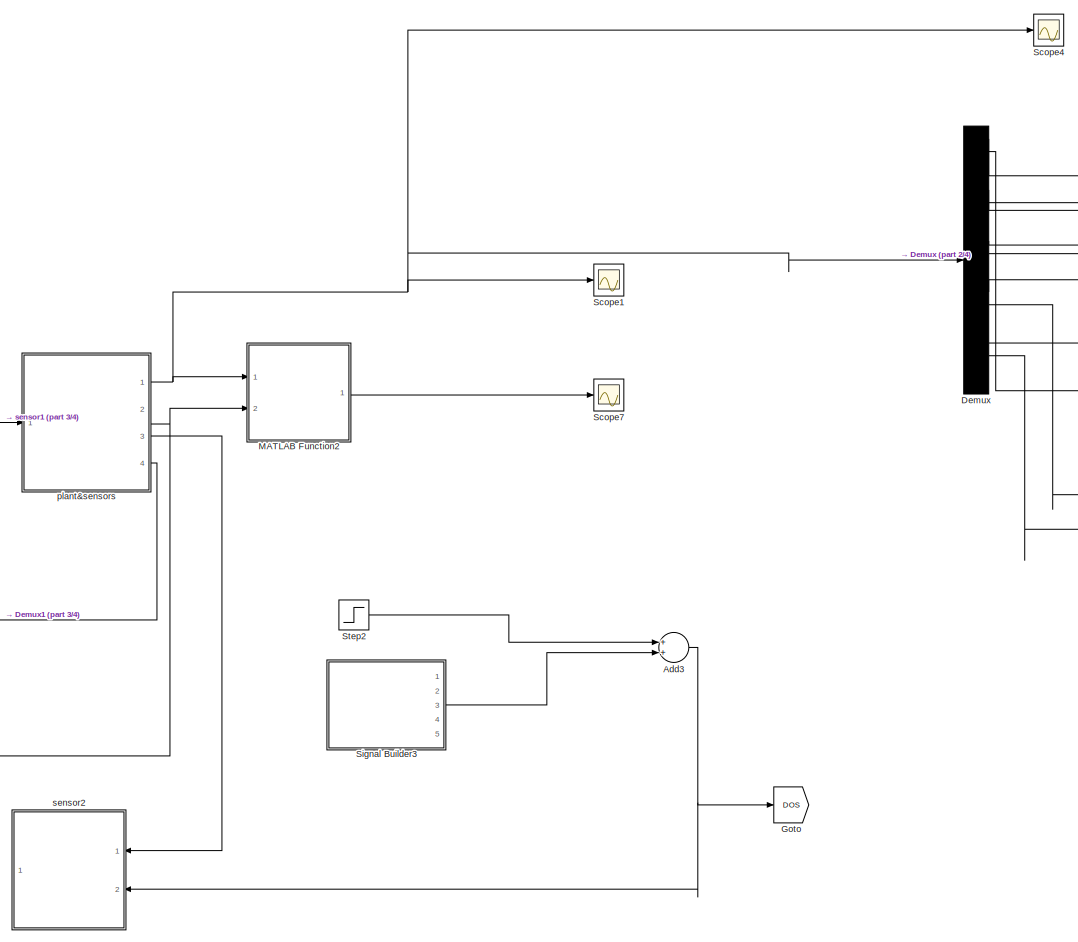
[diagram: root canvas - part 1/4, center side, full height]
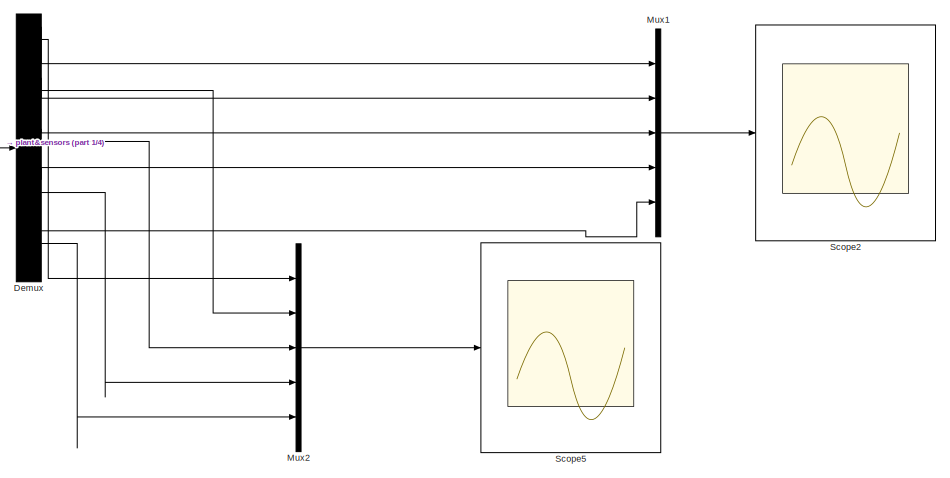
[diagram: root canvas - part 2/4, middle right region]
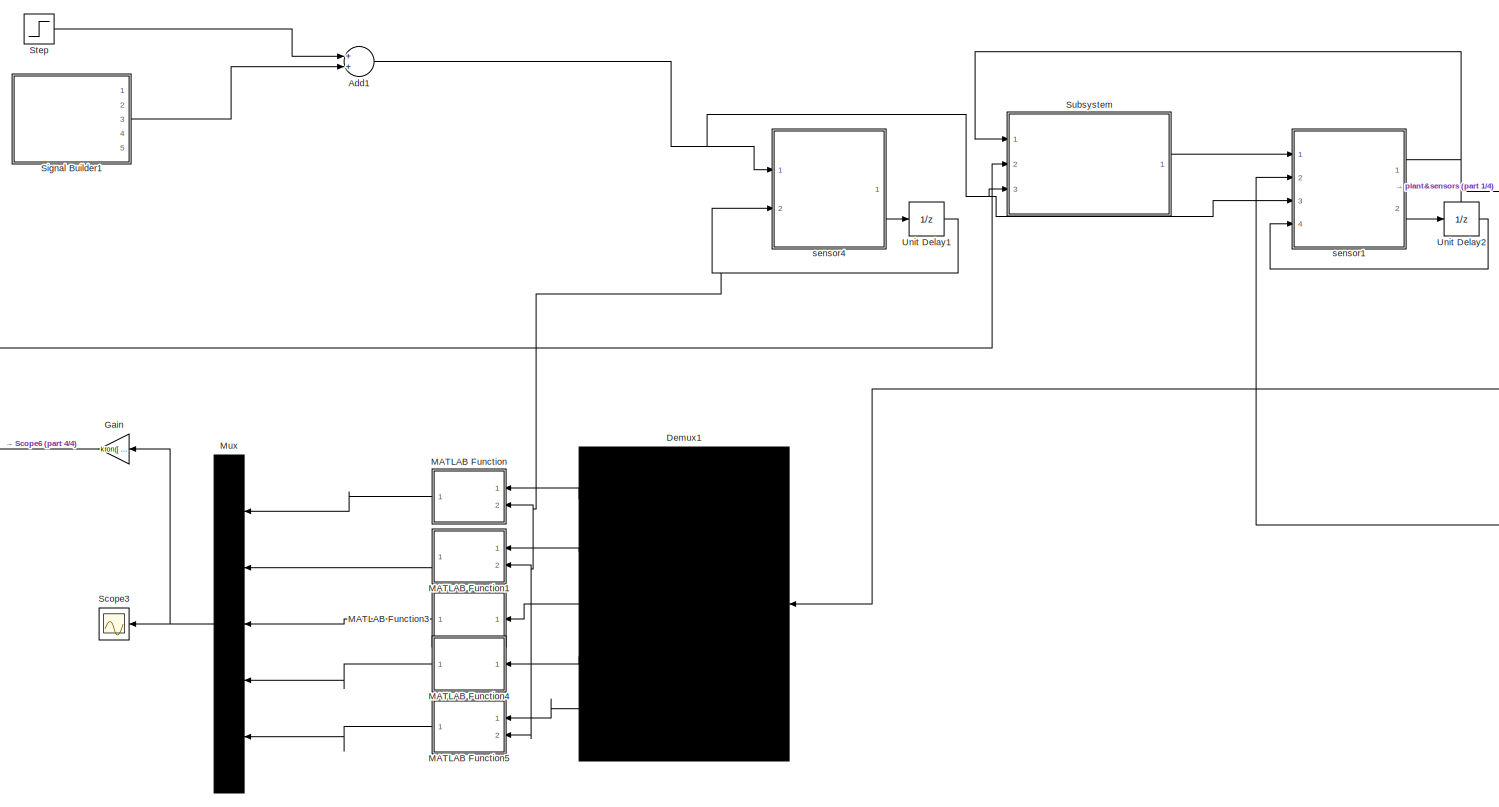
[diagram: root canvas - part 3/4, left side, full height]
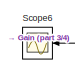
[diagram: root canvas - part 4/4, middle left region]
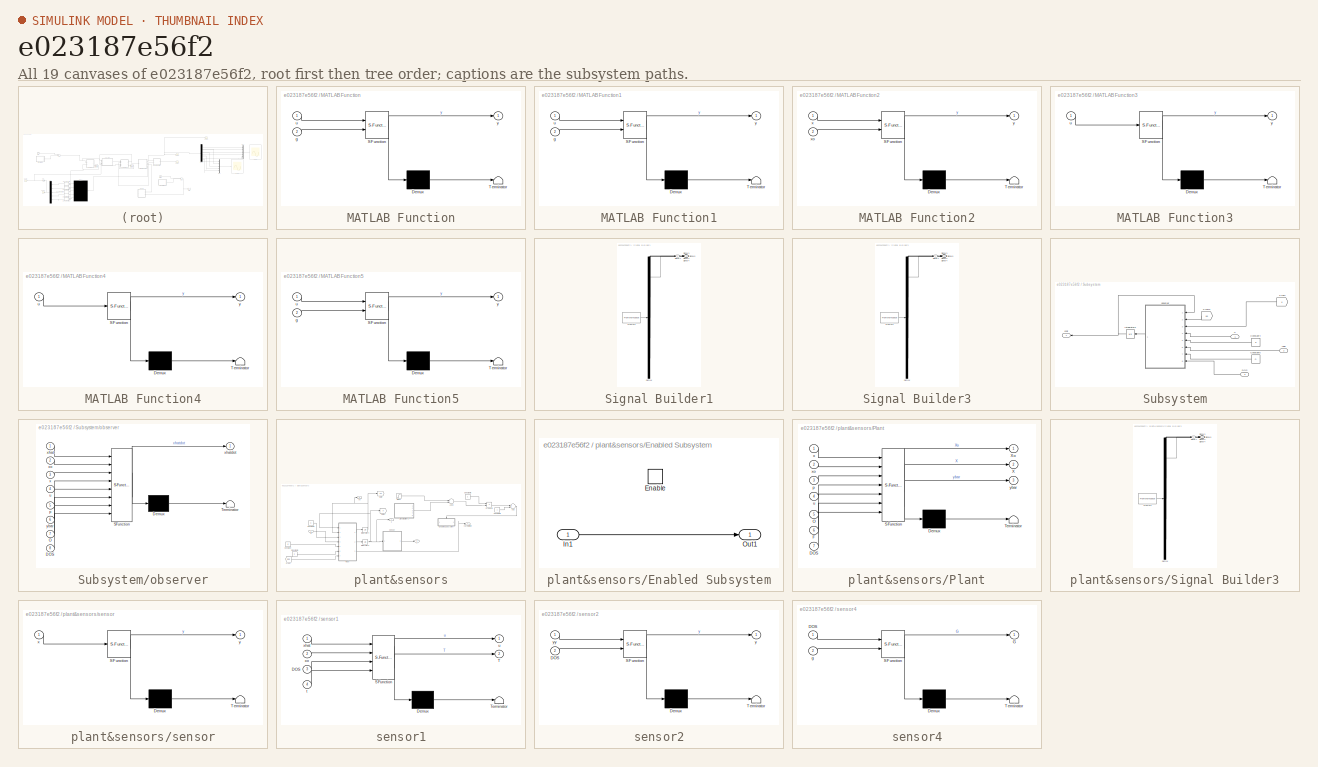
[diagram: thumbnail index - all 19 canvases of the model, root first then tree order]
MODEL slx_e023187e56f2
KIND model
CONFIG AbsTol = auto
CONFIG EnableMultiTasking = off
CONFIG FixedStep = auto
CONFIG MaxStep = auto
CONFIG MinStep = auto
CONFIG RelTol = 1e-3
CONFIG SampleTimeConstraint = Unconstrained
CONFIG Solver = VariableStepAuto
CONFIG SolverName = VariableStepAuto
CONFIG StartTime = 0.0
CONFIG StopTime = 10
BLOCK [Sum] Add1
  InputSameDT = off
  OutDataTypeStr = Inherit: Inherit via internal rule
  Ports = [2, 1]
  SaturateOnIntegerOverflow = off
BLOCK [Sum] Add3
  InputSameDT = off
  OutDataTypeStr = Inherit: Inherit via internal rule
  Ports = [2, 1]
  SaturateOnIntegerOverflow = off
BLOCK [Demux] Demux
  DisplayOption = bar
  Outputs = 20
  Ports = [1, 20]
BLOCK [Demux] Demux1
  DisplayOption = bar
  Outputs = 5
  Ports = [1, 5]
BLOCK [Gain] Gain
  Gain = kron([ 2 0 0 0 -1; -1 2 0 0 0; -1 0 1 0 0; 0 -1 0 1 0; 0 -1 -1 -1 3],[3.0849 0.6931;2.4258 34.9384;7.0235 3.5334;.54 1.8007])
  Multiplication = Matrix(K*u)
  OutDataTypeStr = Inherit: Inherit via internal rule
  ParamDataTypeStr = Inherit: Inherit via internal rule
  SaturateOnIntegerOverflow = off
BLOCK [Goto] Goto
  GotoTag = DOS
  TagVisibility = global
BLOCK [SubSystem] MATLAB Function
  ErrorFcn = Stateflow.Translate.translate
  PermitHierarchicalResolution = ExplicitOnly
  Ports = [2, 1]
  RequestExecContextInheritance = off
  SFBlockType = MATLAB Function
  TreatAsAtomicUnit = on
BLOCK [Demux] MATLAB Function/ Demux 
  Outputs = 1
  Ports = [1, 1]
BLOCK [S-Function] MATLAB Function/ SFunction 
  EnableBusSupport = on
  FunctionName = sf_sfun
  PortCounts = [2 2]
  Ports = [2, 2]
  SFcnIsStateOwnerBlock = off
  SFunctionDeploymentMode = off
  Tag = Stateflow S-Function newww 2
BLOCK [Terminator] MATLAB Function/ Terminator 
BLOCK [Inport] MATLAB Function/g
  IconDisplay = Port number
  Port = 2
BLOCK [Inport] MATLAB Function/u
  IconDisplay = Port number
BLOCK [Outport] MATLAB Function/y
  IconDisplay = Port number
BLOCK [SubSystem] MATLAB Function1
  ErrorFcn = Stateflow.Translate.translate
  PermitHierarchicalResolution = ExplicitOnly
  Ports = [2, 1]
  RequestExecContextInheritance = off
  SFBlockType = MATLAB Function
  TreatAsAtomicUnit = on
BLOCK [Demux] MATLAB Function1/ Demux 
  Outputs = 1
  Ports = [1, 1]
BLOCK [S-Function] MATLAB Function1/ SFunction 
  EnableBusSupport = on
  FunctionName = sf_sfun
  PortCounts = [2 2]
  Ports = [2, 2]
  SFcnIsStateOwnerBlock = off
  SFunctionDeploymentMode = off
  Tag = Stateflow S-Function newww 7
BLOCK [Terminator] MATLAB Function1/ Terminator 
BLOCK [Inport] MATLAB Function1/g
  IconDisplay = Port number
  Port = 2
BLOCK [Inport] MATLAB Function1/u
  IconDisplay = Port number
BLOCK [Outport] MATLAB Function1/y
  IconDisplay = Port number
BLOCK [SubSystem] MATLAB Function2
  ErrorFcn = Stateflow.Translate.translate
  PermitHierarchicalResolution = ExplicitOnly
  Ports = [2, 1]
  RequestExecContextInheritance = off
  SFBlockType = MATLAB Function
  TreatAsAtomicUnit = on
BLOCK [Demux] MATLAB Function2/ Demux 
  Outputs = 1
  Ports = [1, 1]
BLOCK [S-Function] MATLAB Function2/ SFunction 
  EnableBusSupport = on
  FunctionName = sf_sfun
  PortCounts = [2 2]
  Ports = [2, 2]
  SFcnIsStateOwnerBlock = off
  SFunctionDeploymentMode = off
  Tag = Stateflow S-Function newww 8
BLOCK [Terminator] MATLAB Function2/ Terminator 
BLOCK [Inport] MATLAB Function2/x
  IconDisplay = Port number
BLOCK [Inport] MATLAB Function2/xo
  IconDisplay = Port number
  Port = 2
BLOCK [Outport] MATLAB Function2/y
  IconDisplay = Port number
BLOCK [SubSystem] MATLAB Function3
  ErrorFcn = Stateflow.Translate.translate
  PermitHierarchicalResolution = ExplicitOnly
  Ports = [1, 1]
  RequestExecContextInheritance = off
  SFBlockType = MATLAB Function
  TreatAsAtomicUnit = on
BLOCK [Demux] MATLAB Function3/ Demux 
  Outputs = 1
  Ports = [1, 1]
BLOCK [S-Function] MATLAB Function3/ SFunction 
  EnableBusSupport = on
  FunctionName = sf_sfun
  PortCounts = [1 2]
  Ports = [1, 2]
  SFcnIsStateOwnerBlock = off
  SFunctionDeploymentMode = off
  Tag = Stateflow S-Function newww 10
BLOCK [Terminator] MATLAB Function3/ Terminator 
BLOCK [Inport] MATLAB Function3/u
  IconDisplay = Port number
BLOCK [Outport] MATLAB Function3/y
  IconDisplay = Port number
BLOCK [SubSystem] MATLAB Function4
  ErrorFcn = Stateflow.Translate.translate
  PermitHierarchicalResolution = ExplicitOnly
  Ports = [1, 1]
  RequestExecContextInheritance = off
  SFBlockType = MATLAB Function
  TreatAsAtomicUnit = on
BLOCK [Demux] MATLAB Function4/ Demux 
  Outputs = 1
  Ports = [1, 1]
BLOCK [S-Function] MATLAB Function4/ SFunction 
  EnableBusSupport = on
  FunctionName = sf_sfun
  PortCounts = [1 2]
  Ports = [1, 2]
  SFcnIsStateOwnerBlock = off
  SFunctionDeploymentMode = off
  Tag = Stateflow S-Function newww 11
BLOCK [Terminator] MATLAB Function4/ Terminator 
BLOCK [Inport] MATLAB Function4/u
  IconDisplay = Port number
BLOCK [Outport] MATLAB Function4/y
  IconDisplay = Port number
BLOCK [SubSystem] MATLAB Function5
  ErrorFcn = Stateflow.Translate.translate
  PermitHierarchicalResolution = ExplicitOnly
  Ports = [2, 1]
  RequestExecContextInheritance = off
  SFBlockType = MATLAB Function
  TreatAsAtomicUnit = on
BLOCK [Demux] MATLAB Function5/ Demux 
  Outputs = 1
  Ports = [1, 1]
BLOCK [S-Function] MATLAB Function5/ SFunction 
  EnableBusSupport = on
  FunctionName = sf_sfun
  PortCounts = [2 2]
  Ports = [2, 2]
  SFcnIsStateOwnerBlock = off
  SFunctionDeploymentMode = off
  Tag = Stateflow S-Function newww 12
BLOCK [Terminator] MATLAB Function5/ Terminator 
BLOCK [Inport] MATLAB Function5/g
  IconDisplay = Port number
  Port = 2
BLOCK [Inport] MATLAB Function5/u
  IconDisplay = Port number
BLOCK [Outport] MATLAB Function5/y
  IconDisplay = Port number
BLOCK [Mux] Mux
  DisplayOption = bar
  Inputs = 5
  Ports = [5, 1]
BLOCK [Mux] Mux1
  DisplayOption = bar
  Inputs = 5
  Ports = [5, 1]
BLOCK [Mux] Mux2
  DisplayOption = bar
  Inputs = 5
  Ports = [5, 1]
BLOCK [Scope] Scope1
  Floating = off
  NumInputPorts = 1
  Ports = [1]
  ScopeSpecificationString = Simulink.scopes.TimeScopeBlockCfg('CurrentConfiguration', extmgr.ConfigurationSet(extmgr.Configuration('Core','General UI',true),extmgr.Configuration('Core','Source UI',true),extmgr.Configuration('Sources','WiredSimulink',true,'DataLoggingVariableName','ScopeData4','DataLogging',true,'DataLoggingSaveFormat','StructureWithTime'),extmgr.Configuration('Visuals','Time Domain',true,'SerializedDisplays'...<+1879ch>
BLOCK [Scope] Scope2
  Floating = off
  NumInputPorts = 1
  Ports = [1]
  ScopeSpecificationString = Simulink.scopes.TimeScopeBlockCfg('CurrentConfiguration', extmgr.ConfigurationSet(extmgr.Configuration('Core','General UI',true),extmgr.Configuration('Core','Source UI',true),extmgr.Configuration('Sources','WiredSimulink',true,'DataLoggingVariableName','x1res','DataLogging',true,'DataLoggingSaveFormat','StructureWithTime'),extmgr.Configuration('Visuals','Time Domain',true,'SerializedDisplays',{str...<+1506ch>
BLOCK [Scope] Scope3
  Floating = off
  NumInputPorts = 1
  Ports = [1]
  ScopeSpecificationString = Simulink.scopes.TimeScopeBlockCfg('CurrentConfiguration', extmgr.ConfigurationSet(extmgr.Configuration('Core','General UI',true),extmgr.Configuration('Core','Source UI',true),extmgr.Configuration('Sources','WiredSimulink',true,'DataLoggingVariableName','hgoi','DataLogging',true,'DataLoggingSaveFormat','StructureWithTime'),extmgr.Configuration('Visuals','Time Domain',true,'SerializedDisplays',{stru...<+1688ch>
BLOCK [Scope] Scope4
  Floating = off
  NumInputPorts = 1
  Ports = [1]
  ScopeSpecificationString = Simulink.scopes.TimeScopeBlockCfg('CurrentConfiguration', extmgr.ConfigurationSet(extmgr.Configuration('Core','General UI',true),extmgr.Configuration('Core','Source UI',true),extmgr.Configuration('Sources','WiredSimulink',true,'DataLoggingVariableName','aaa','DataLogging',true,'DataLoggingSaveFormat','StructureWithTime'),extmgr.Configuration('Visuals','Time Domain',true,'SerializedDisplays',{struc...<+1870ch>
BLOCK [Scope] Scope5
  Floating = off
  NumInputPorts = 1
  Ports = [1]
  ScopeSpecificationString = Simulink.scopes.TimeScopeBlockCfg('CurrentConfiguration', extmgr.ConfigurationSet(extmgr.Configuration('Core','General UI',true),extmgr.Configuration('Core','Source UI',true),extmgr.Configuration('Sources','WiredSimulink',true,'DataLoggingVariableName','x2res','DataLogging',true,'DataLoggingSaveFormat','StructureWithTime'),extmgr.Configuration('Visuals','Time Domain',true,'SerializedDisplays',{str...<+1509ch>
BLOCK [Scope] Scope6
  Floating = off
  NumInputPorts = 1
  Ports = [1]
  ScopeSpecificationString = Simulink.scopes.TimeScopeBlockCfg('CurrentConfiguration', extmgr.ConfigurationSet(extmgr.Configuration('Core','General UI',true),extmgr.Configuration('Core','Source UI',true),extmgr.Configuration('Sources','WiredSimulink',true,'DataLoggingVariableName','hgoi1','DataLogging',true,'DataLoggingSaveFormat','StructureWithTime'),extmgr.Configuration('Visuals','Time Domain',true,'SerializedDisplays',{str...<+1685ch>
BLOCK [Scope] Scope7
  Floating = off
  NumInputPorts = 1
  Ports = [1]
  ScopeSpecificationString = Simulink.scopes.TimeScopeBlockCfg('CurrentConfiguration', extmgr.ConfigurationSet(extmgr.Configuration('Core','General UI',true),extmgr.Configuration('Core','Source UI',true),extmgr.Configuration('Sources','WiredSimulink',true,'DataLoggingVariableName','eres','DataLogging',true,'DataLoggingSaveFormat','StructureWithTime'),extmgr.Configuration('Visuals','Time Domain',true,'SerializedDisplays',{stru...<+1478ch>
BLOCK [SubSystem] Signal Builder1
  ClipboardFcn = sigbuilder_block('clipboard');
  CloseFcn = sigbuilder_block('close');
  ContinueFcn = sigbuilder_block('continue');
  CopyFcn = sigbuilder_block('copy');
  DeleteFcn = sigbuilder_block('delete');
  LoadFcn = sigbuilder_block('load');
  MaskHideContents = on
  ModelCloseFcn = sigbuilder_block('modelClose');
  NameChangeFcn = sigbuilder_block('namechange');
  OpenFcn = sigbuilder_block('open',[5.4 30 1141.2 522.6 ]);
  PauseFcn = sigbuilder_block('pause');
  Ports = [0, 5]
  PreSaveFcn = sigbuilder_block('preSave');
  RequestExecContextInheritance = off
  StartFcn = sigbuilder_block('start');
  StopFcn = sigbuilder_block('stop');
  Tag = STV Subsys
BLOCK [Demux] Signal Builder1/Demux
  Outputs = 5
  Ports = [1, 5]
  Tag = STV Demux
BLOCK [FromWorkspace] Signal Builder1/FromWs
  SampleTime = 0
  Tag = STV FromWs
  VariableName = tuvar
  ZeroCross = on
BLOCK [Outport] Signal Builder1/Signal 1
  IconDisplay = Port number
  Tag = STV Outport
BLOCK [Outport] Signal Builder1/Signal 2
  IconDisplay = Port number
  Port = 2
  Tag = STV Outport
BLOCK [Outport] Signal Builder1/Signal 3
  IconDisplay = Port number
  Port = 3
  Tag = STV Outport
BLOCK [Outport] Signal Builder1/Signal 4
  IconDisplay = Port number
  Port = 4
  Tag = STV Outport
BLOCK [Outport] Signal Builder1/Signal 5
  IconDisplay = Port number
  Port = 5
  Tag = STV Outport
BLOCK [SubSystem] Signal Builder3
  ClipboardFcn = sigbuilder_block('clipboard');
  CloseFcn = sigbuilder_block('close');
  ContinueFcn = sigbuilder_block('continue');
  CopyFcn = sigbuilder_block('copy');
  DeleteFcn = sigbuilder_block('delete');
  LoadFcn = sigbuilder_block('load');
  MaskHideContents = on
  ModelCloseFcn = sigbuilder_block('modelClose');
  NameChangeFcn = sigbuilder_block('namechange');
  OpenFcn = sigbuilder_block('open',[5.4 30 1141.2 522.6 ]);
  PauseFcn = sigbuilder_block('pause');
  Ports = [0, 5]
  PreSaveFcn = sigbuilder_block('preSave');
  RequestExecContextInheritance = off
  StartFcn = sigbuilder_block('start');
  StopFcn = sigbuilder_block('stop');
  Tag = STV Subsys
BLOCK [Demux] Signal Builder3/Demux
  Outputs = 5
  Ports = [1, 5]
  Tag = STV Demux
BLOCK [FromWorkspace] Signal Builder3/FromWs
  SampleTime = 0
  Tag = STV FromWs
  VariableName = tuvar
  ZeroCross = on
BLOCK [Outport] Signal Builder3/Signal 1
  IconDisplay = Port number
  Tag = STV Outport
BLOCK [Outport] Signal Builder3/Signal 2
  IconDisplay = Port number
  Port = 2
  Tag = STV Outport
BLOCK [Outport] Signal Builder3/Signal 3
  IconDisplay = Port number
  Port = 3
  Tag = STV Outport
BLOCK [Outport] Signal Builder3/Signal 4
  IconDisplay = Port number
  Port = 4
  Tag = STV Outport
BLOCK [Outport] Signal Builder3/Signal 5
  IconDisplay = Port number
  Port = 5
  Tag = STV Outport
BLOCK [Step] Step
  After = -1
  SampleTime = 10
BLOCK [Step] Step2
  After = -1
  SampleTime = 10
BLOCK [SubSystem] Subsystem
  Ports = [3, 1]
  RequestExecContextInheritance = off
BLOCK [Constant] Subsystem/Constant4
  Value = p
BLOCK [Constant] Subsystem/Constant5
  Value = O
BLOCK [Inport] Subsystem/DOS
  IconDisplay = Port number
  Port = 3
BLOCK [From] Subsystem/From
  GotoTag = x
  TagVisibility = global
BLOCK [From] Subsystem/From1
  GotoTag = xo
  TagVisibility = global
BLOCK [Integrator] Subsystem/Integrator2
  InitialCondition = [-10;-9;-8;-7;-6;5;-4;-3;-2;-1;1;2;3;4;5;6;7;8;9;10]
  Ports = [1, 1]
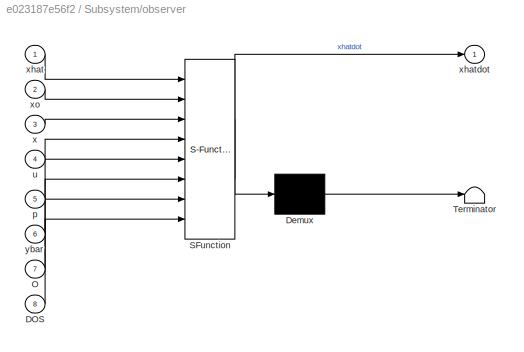
BLOCK [SubSystem] Subsystem/observer
  ErrorFcn = Stateflow.Translate.translate
  PermitHierarchicalResolution = ExplicitOnly
  Ports = [8, 1]
  RequestExecContextInheritance = off
  SFBlockType = MATLAB Function
  TreatAsAtomicUnit = on
BLOCK [Demux] Subsystem/observer/ Demux 
  Outputs = 1
  Ports = [1, 1]
BLOCK [S-Function] Subsystem/observer/ SFunction 
  EnableBusSupport = on
  FunctionName = sf_sfun
  PortCounts = [8 2]
  Ports = [8, 2]
  SFcnIsStateOwnerBlock = off
  SFunctionDeploymentMode = off
  Tag = Stateflow S-Function newww 1
BLOCK [Terminator] Subsystem/observer/ Terminator 
BLOCK [Inport] Subsystem/observer/DOS
  IconDisplay = Port number
  Port = 8
BLOCK [Inport] Subsystem/observer/O
  IconDisplay = Port number
  Port = 7
BLOCK [Inport] Subsystem/observer/p
  IconDisplay = Port number
  Port = 5
BLOCK [Inport] Subsystem/observer/u
  IconDisplay = Port number
  Port = 4
BLOCK [Inport] Subsystem/observer/x
  IconDisplay = Port number
  Port = 3
BLOCK [Inport] Subsystem/observer/xhat
  IconDisplay = Port number
BLOCK [Outport] Subsystem/observer/xhatdot
  IconDisplay = Port number
BLOCK [Inport] Subsystem/observer/xo
  IconDisplay = Port number
  Port = 2
BLOCK [Inport] Subsystem/observer/ybar
  IconDisplay = Port number
  Port = 6
BLOCK [Inport] Subsystem/u
  IconDisplay = Port number
BLOCK [Outport] Subsystem/xhat
  IconDisplay = Port number
BLOCK [Inport] Subsystem/ybar
  IconDisplay = Port number
  Port = 2
BLOCK [UnitDelay] Unit Delay1
  InitialCondition = [eye(2) zeros(2,6)]
  InputProcessing = Elements as channels (sample based)
  SampleTime = 0.01
BLOCK [UnitDelay] Unit Delay2
  InitialCondition = [1 0 0 0]
  InputProcessing = Elements as channels (sample based)
  SampleTime = 0.01
BLOCK [SubSystem] plant&sensors
  Ports = [1, 4]
  RequestExecContextInheritance = off
BLOCK [Sum] plant&sensors/Add
  InputSameDT = off
  OutDataTypeStr = Inherit: Inherit via internal rule
  Ports = [2, 1]
  SaturateOnIntegerOverflow = off
BLOCK [Sum] plant&sensors/Add3
  InputSameDT = off
  OutDataTypeStr = Inherit: Inherit via internal rule
  Ports = [2, 1]
  SaturateOnIntegerOverflow = off
BLOCK [Constant] plant&sensors/Constant
  Value = O
BLOCK [Constant] plant&sensors/Constant4
  Value = F
BLOCK [Constant] plant&sensors/Constant5
  Value = -1
BLOCK [Constant] plant&sensors/Constant6
BLOCK [Constant] plant&sensors/Constant7
  Value = p
BLOCK [SubSystem] plant&sensors/Enabled Subsystem
  Ports = [1, 1, 1]
  RequestExecContextInheritance = off
  TreatAsAtomicUnit = on
BLOCK [EnablePort] plant&sensors/Enabled Subsystem/Enable
  Ports = []
BLOCK [Inport] plant&sensors/Enabled Subsystem/In1
  IconDisplay = Port number
BLOCK [Outport] plant&sensors/Enabled Subsystem/Out1
  IconDisplay = Port number
BLOCK [From] plant&sensors/From
  GotoTag = DOS
  TagVisibility = global
BLOCK [Goto] plant&sensors/Goto
  GotoTag = xo
  TagVisibility = global
BLOCK [Goto] plant&sensors/Goto1
  GotoTag = x
  TagVisibility = global
BLOCK [Integrator] plant&sensors/Integrator3
  InitialCondition = [-10;-9;-8;-7;-6;5;-4;-3;-2;-1;1;2;3;4;5;6;7;8;9;10]
  Ports = [1, 1]
BLOCK [Integrator] plant&sensors/Integrator4
  InitialCondition = [-5;1;3;-15]
  Ports = [1, 1]
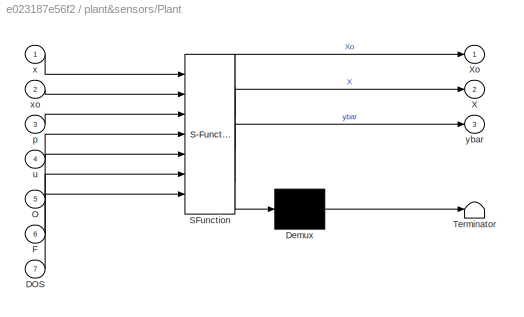
BLOCK [SubSystem] plant&sensors/Plant
  ErrorFcn = Stateflow.Translate.translate
  PermitHierarchicalResolution = ExplicitOnly
  Ports = [7, 3]
  RequestExecContextInheritance = off
  SFBlockType = MATLAB Function
  TreatAsAtomicUnit = on
BLOCK [Demux] plant&sensors/Plant/ Demux 
  Outputs = 1
  Ports = [1, 1]
BLOCK [S-Function] plant&sensors/Plant/ SFunction 
  EnableBusSupport = on
  FunctionName = sf_sfun
  PortCounts = [7 4]
  Ports = [7, 4]
  SFcnIsStateOwnerBlock = off
  SFunctionDeploymentMode = off
  Tag = Stateflow S-Function newww 6
BLOCK [Terminator] plant&sensors/Plant/ Terminator 
BLOCK [Inport] plant&sensors/Plant/DOS
  IconDisplay = Port number
  Port = 7
BLOCK [Inport] plant&sensors/Plant/F
  IconDisplay = Port number
  Port = 6
BLOCK [Inport] plant&sensors/Plant/O
  IconDisplay = Port number
  Port = 5
BLOCK [Outport] plant&sensors/Plant/X
  IconDisplay = Port number
  Port = 2
BLOCK [Outport] plant&sensors/Plant/Xo
  IconDisplay = Port number
BLOCK [Inport] plant&sensors/Plant/p
  IconDisplay = Port number
  Port = 3
BLOCK [Inport] plant&sensors/Plant/u
  IconDisplay = Port number
  Port = 4
BLOCK [Inport] plant&sensors/Plant/x
  IconDisplay = Port number
BLOCK [Inport] plant&sensors/Plant/xo
  IconDisplay = Port number
  Port = 2
BLOCK [Outport] plant&sensors/Plant/ybar
  IconDisplay = Port number
  Port = 3
BLOCK [Product] plant&sensors/Product1
  InputSameDT = off
  OutDataTypeStr = Inherit: Inherit via internal rule
  Ports = [2, 1]
  RndMeth = Floor
  SaturateOnIntegerOverflow = off
BLOCK [SubSystem] plant&sensors/Signal Builder3
  ClipboardFcn = sigbuilder_block('clipboard');
  CloseFcn = sigbuilder_block('close');
  ContinueFcn = sigbuilder_block('continue');
  CopyFcn = sigbuilder_block('copy');
  DeleteFcn = sigbuilder_block('delete');
  LoadFcn = sigbuilder_block('load');
  MaskHideContents = on
  ModelCloseFcn = sigbuilder_block('modelClose');
  NameChangeFcn = sigbuilder_block('namechange');
  OpenFcn = sigbuilder_block('open',[5.4 30 1141.2 522.6 ]);
  PauseFcn = sigbuilder_block('pause');
  Ports = [0, 5]
  PreSaveFcn = sigbuilder_block('preSave');
  RequestExecContextInheritance = off
  StartFcn = sigbuilder_block('start');
  StopFcn = sigbuilder_block('stop');
  Tag = STV Subsys
BLOCK [Demux] plant&sensors/Signal Builder3/Demux
  Outputs = 5
  Ports = [1, 5]
  Tag = STV Demux
BLOCK [FromWorkspace] plant&sensors/Signal Builder3/FromWs
  SampleTime = 0
  Tag = STV FromWs
  VariableName = tuvar
  ZeroCross = on
BLOCK [Outport] plant&sensors/Signal Builder3/Signal 1
  IconDisplay = Port number
  Tag = STV Outport
BLOCK [Outport] plant&sensors/Signal Builder3/Signal 2
  IconDisplay = Port number
  Port = 2
  Tag = STV Outport
BLOCK [Outport] plant&sensors/Signal Builder3/Signal 3
  IconDisplay = Port number
  Port = 3
  Tag = STV Outport
BLOCK [Outport] plant&sensors/Signal Builder3/Signal 4
  IconDisplay = Port number
  Port = 4
  Tag = STV Outport
BLOCK [Outport] plant&sensors/Signal Builder3/Signal 5
  IconDisplay = Port number
  Port = 5
  Tag = STV Outport
BLOCK [Step] plant&sensors/Step2
  After = -1
  SampleTime = 10
BLOCK [SubSystem] plant&sensors/sensor
  ErrorFcn = Stateflow.Translate.translate
  PermitHierarchicalResolution = ExplicitOnly
  Ports = [1, 1]
  RequestExecContextInheritance = off
  SFBlockType = MATLAB Function
  TreatAsAtomicUnit = on
BLOCK [Demux] plant&sensors/sensor/ Demux 
  Outputs = 1
  Ports = [1, 1]
BLOCK [S-Function] plant&sensors/sensor/ SFunction 
  EnableBusSupport = on
  FunctionName = sf_sfun
  PortCounts = [1 2]
  Ports = [1, 2]
  SFcnIsStateOwnerBlock = off
  SFunctionDeploymentMode = off
  Tag = Stateflow S-Function newww 4
BLOCK [Terminator] plant&sensors/sensor/ Terminator 
BLOCK [Inport] plant&sensors/sensor/x
  IconDisplay = Port number
BLOCK [Outport] plant&sensors/sensor/y
  IconDisplay = Port number
BLOCK [Inport] plant&sensors/u
  IconDisplay = Port number
BLOCK [Outport] plant&sensors/x
  IconDisplay = Port number
BLOCK [Outport] plant&sensors/xo
  IconDisplay = Port number
  Port = 2
BLOCK [Outport] plant&sensors/y
  IconDisplay = Port number
  Port = 3
BLOCK [Outport] plant&sensors/ypredictive
  IconDisplay = Port number
  Port = 4
BLOCK [SubSystem] sensor1
  ErrorFcn = Stateflow.Translate.translate
  PermitHierarchicalResolution = ExplicitOnly
  Ports = [4, 2]
  RequestExecContextInheritance = off
  SFBlockType = MATLAB Function
  TreatAsAtomicUnit = on
BLOCK [Demux] sensor1/ Demux 
  Outputs = 1
  Ports = [1, 1]
BLOCK [S-Function] sensor1/ SFunction 
  EnableBusSupport = on
  FunctionName = sf_sfun
  PortCounts = [4 3]
  Ports = [4, 3]
  SFcnIsStateOwnerBlock = off
  SFunctionDeploymentMode = off
  Tag = Stateflow S-Function newww 3
BLOCK [Terminator] sensor1/ Terminator 
BLOCK [Inport] sensor1/DOS
  IconDisplay = Port number
  Port = 3
BLOCK [Outport] sensor1/T
  IconDisplay = Port number
  Port = 2
BLOCK [Inport] sensor1/t
  IconDisplay = Port number
  Port = 4
BLOCK [Outport] sensor1/u
  IconDisplay = Port number
BLOCK [Inport] sensor1/xhat
  IconDisplay = Port number
BLOCK [Inport] sensor1/xo
  IconDisplay = Port number
  Port = 2
BLOCK [SubSystem] sensor2
  ErrorFcn = Stateflow.Translate.translate
  PermitHierarchicalResolution = ExplicitOnly
  Ports = [2, 1]
  RequestExecContextInheritance = off
  SFBlockType = MATLAB Function
  TreatAsAtomicUnit = on
BLOCK [Demux] sensor2/ Demux 
  Outputs = 1
  Ports = [1, 1]
BLOCK [S-Function] sensor2/ SFunction 
  EnableBusSupport = on
  FunctionName = sf_sfun
  PortCounts = [2 2]
  Ports = [2, 2]
  SFcnIsStateOwnerBlock = off
  SFunctionDeploymentMode = off
  Tag = Stateflow S-Function newww 5
BLOCK [Terminator] sensor2/ Terminator 
BLOCK [Inport] sensor2/DOS
  IconDisplay = Port number
  Port = 2
BLOCK [Outport] sensor2/y
  IconDisplay = Port number
BLOCK [Inport] sensor2/yy
  IconDisplay = Port number
BLOCK [SubSystem] sensor4
  ErrorFcn = Stateflow.Translate.translate
  PermitHierarchicalResolution = ExplicitOnly
  Ports = [2, 1]
  RequestExecContextInheritance = off
  SFBlockType = MATLAB Function
  TreatAsAtomicUnit = on
BLOCK [Demux] sensor4/ Demux 
  Outputs = 1
  Ports = [1, 1]
BLOCK [S-Function] sensor4/ SFunction 
  EnableBusSupport = on
  FunctionName = sf_sfun
  PortCounts = [2 2]
  Ports = [2, 2]
  SFcnIsStateOwnerBlock = off
  SFunctionDeploymentMode = off
  Tag = Stateflow S-Function newww 9
BLOCK [Terminator] sensor4/ Terminator 
BLOCK [Inport] sensor4/DOS
  IconDisplay = Port number
BLOCK [Outport] sensor4/G
  IconDisplay = Port number
BLOCK [Inport] sensor4/g
  IconDisplay = Port number
  Port = 2
NET Add1:1 -> Subsystem:3, sensor1:3, sensor4:1
NET Add3:1 -> Goto:1, sensor2:2
LINE Demux1:1 -> MATLAB Function:1
LINE Demux1:2 -> MATLAB Function1:1
LINE Demux1:3 -> MATLAB Function3:1
LINE Demux1:4 -> MATLAB Function4:1
LINE Demux1:5 -> MATLAB Function5:1
LINE Demux:1 -> Mux1:1
LINE Demux:10 -> Mux2:3
LINE Demux:13 -> Mux1:4
LINE Demux:14 -> Mux2:4
LINE Demux:17 -> Mux1:5
LINE Demux:18 -> Mux2:5
LINE Demux:2 -> Mux2:1
LINE Demux:5 -> Mux1:2
LINE Demux:6 -> Mux2:2
LINE Demux:9 -> Mux1:3
NET Gain:1 -> Scope6:1, Subsystem:2
LINE MATLAB Function1:1 -> Mux:2
LINE MATLAB Function2:1 -> Scope7:1
LINE MATLAB Function3:1 -> Mux:3
LINE MATLAB Function4:1 -> Mux:4
LINE MATLAB Function5:1 -> Mux:5
LINE MATLAB Function:1 -> Mux:1
LINE Mux1:1 -> Scope2:1
LINE Mux2:1 -> Scope5:1
NET Mux:1 -> Gain:1, Scope3:1
LINE Signal Builder1:3 -> Add1:2
LINE Signal Builder3:3 -> Add3:2
LINE Step2:1 -> Add3:1
LINE Step:1 -> Add1:1
LINE Subsystem/Constant4:1 -> Subsystem/observer:5
LINE Subsystem/Constant5:1 -> Subsystem/observer:7
LINE Subsystem/DOS:1 -> Subsystem/observer:8
LINE Subsystem/From1:1 -> Subsystem/observer:2
LINE Subsystem/From:1 -> Subsystem/observer:3
NET Subsystem/Integrator2:1 -> Subsystem/observer:1, Subsystem/xhat:1
LINE Subsystem/observer:1 -> Subsystem/Integrator2:1
LINE Subsystem/u:1 -> Subsystem/observer:4
LINE Subsystem/ybar:1 -> Subsystem/observer:6
LINE Subsystem:1 -> sensor1:1
NET Unit Delay1:1 -> MATLAB Function1:2, MATLAB Function5:2, MATLAB Function:2, sensor4:2
LINE Unit Delay2:1 -> sensor1:4
LINE plant&sensors/Add3:1 -> plant&sensors/Product1:2
LINE plant&sensors/Add:1 -> plant&sensors/Enabled Subsystem:enable
LINE plant&sensors/Constant4:1 -> plant&sensors/Plant:6
LINE plant&sensors/Constant5:1 -> plant&sensors/Product1:1
LINE plant&sensors/Constant6:1 -> plant&sensors/Add:2
LINE plant&sensors/Constant7:1 -> plant&sensors/Plant:3
LINE plant&sensors/Constant:1 -> plant&sensors/Plant:5
LINE plant&sensors/Enabled Subsystem/In1:1 -> plant&sensors/Enabled Subsystem/Out1:1
LINE plant&sensors/From:1 -> plant&sensors/Plant:7
NET plant&sensors/Integrator3:1 -> plant&sensors/Goto1:1, plant&sensors/Plant:1, plant&sensors/sensor:1, plant&sensors/x:1
NET plant&sensors/Integrator4:1 -> plant&sensors/Goto:1, plant&sensors/Plant:2, plant&sensors/xo:1
LINE plant&sensors/Plant:1 -> plant&sensors/Integrator4:1
LINE plant&sensors/Plant:2 -> plant&sensors/Integrator3:1
LINE plant&sensors/Plant:3 -> plant&sensors/ypredictive:1
LINE plant&sensors/Product1:1 -> plant&sensors/Add:1
LINE plant&sensors/Signal Builder3:3 -> plant&sensors/Add3:2
LINE plant&sensors/Step2:1 -> plant&sensors/Add3:1
LINE plant&sensors/sensor:1 -> plant&sensors/y:1
LINE plant&sensors/u:1 -> plant&sensors/Plant:4
NET plant&sensors:1 -> Demux:1, MATLAB Function2:1, Scope1:1, Scope4:1
NET plant&sensors:2 -> MATLAB Function2:2, sensor1:2
LINE plant&sensors:3 -> sensor2:1
LINE plant&sensors:4 -> Demux1:1
NET sensor1:1 -> Subsystem:1, plant&sensors:1
LINE sensor1:2 -> Unit Delay2:1
LINE sensor4:1 -> Unit Delay1:1
note: NET lines group one-source signal fan-out (src -> all destinations, sorted); 1:1 wires keep LINE
CHART Subsystem/observer states=1 transitions=1
  STATE_LABEL 'eML_blk_kernel()'
  STATE_LABEL 'SCRIPT:\nfunction xhatdot = fcn(xhat,xo,x,u,p,ybar,O,DOS)\nA=[0 1 0 0;-48.6 -1.26 48.6 0;0 0 0 10; 1.95 0 -1.95 0];\nB=[0;21.6;0;0];\nC=[1 0 1 -1;0 1 0 0];\nteta=5;\nH=[3.0849 0.6931;2.4258 34.9384;7.0235 3.5334;.54 1.8007];\n\n\n%Lo=[0 0 0 0 0 0;-1 2-DOS 0 0 0 -1+DOS;-1+DOS -1 2-DOS 0 0 0;0 -1+DOS 0 1-DOS 0 0;0 0 -1 0 1 0;0 0 -1+DOS -1 -1 3-DOS];\n% L=[0 0 0 0 0 0;-1 2 0 0 0 -1;-1 -1 2 0 0 0;0 -1 0 1 0 0;0...<+648ch>'
CHART MATLAB Function states=1 transitions=1
  STATE_LABEL 'eML_blk_kernel()'
  STATE_LABEL 'SCRIPT:\nfunction y = fcn(u,g)\n\ny =g*u;\n'
CHART sensor1 states=1 transitions=1
  STATE_LABEL 'eML_blk_kernel()'
  STATE_LABEL 'SCRIPT:\nfunction [u,T]  = fcn(xhat,xo,DOS,t)\nc=2;\nLu=[-1 2 0 0 0 -1;-1 -1 2 0 0 0;0 -1 0 1 0 0;0 0 -1 0 1 0;0 0 -1 -1 -1 3];\nA=[0.9976    0.0099    0.0024    0.0001\n   -0.4824    0.9851    0.4824    0.0242\n    0.0010    0.0000    0.9990    0.1000\n    0.0195    0.0001   -0.0195    0.9990];\nB=[0.0011\n    0.2145\n    0.0000\n    0.0000];\nq=[1.1926    0.4512   -0.9407    1.5229];\np=[];\nNp=4;\nfor i=0:Np-...<+141ch>'
CHART plant&sensors/sensor states=1 transitions=1
  STATE_LABEL 'eML_blk_kernel()'
  STATE_LABEL 'SCRIPT:\nfunction y  = fcn(x)\nC=[1 0 1 -1;0 1 0 0];\nN=5;\nC0=kron(eye(N),C);\ny=C0*x;\n\n'
CHART sensor2 states=1 transitions=1
  STATE_LABEL 'eML_blk_kernel()'
  STATE_LABEL 'SCRIPT:\nfunction y = fcn(yy,DOS)\nLo=[ 2-DOS 0 0 0 -1+DOS; -1 2-DOS 0 0 0; -1+DOS 0 1-DOS 0 0; 0 -1 0 1 0; 0 -1+DOS -1 -1 3-DOS];\nH=[3.0849 0.6931;2.4258 34.9384;7.0235 3.5334;.54 1.8007];\nL=[ 2 0 0 0 -1; -1 2 0 0 0; -1 0 1 0 0; 0 -1 0 1 0; 0 -1 -1 -1 3];\ny=kron(Lo,H)*yy;\n\n'
CHART plant&sensors/Plant states=1 transitions=1
  STATE_LABEL 'eML_blk_kernel()'
  STATE_LABEL 'SCRIPT:\nfunction [Xo,X,ybar] = fcn(x,xo,p,u,O,F,DOS)\nA=[0 1 0 0;-48.6 -1.26 48.6 0;0 0 0 10; 1.95 0 -1.95 0];\nB=[0;21.6;0;0];\nA0=kron(eye(5),A);\nB0=kron(eye(5),B);\nO0=kron(eye(5),O);\nF0=kron(eye(5),F);\n\n% ybar = O0*x+sigma0*wbar+dbar+F0*ubar;\nif DOS==1\n    FF=p;\ne=kron(ones(5,1),xo)-x;\nubar=FF*e;\n   ybar = O0*x+F0*ubar; \nelse\n ybar = O0*x;\nend\nXo =A*xo;\nX=A0*x+B0*u;\n'
CHART MATLAB Function1 states=1 transitions=1
  STATE_LABEL 'eML_blk_kernel()'
  STATE_LABEL 'SCRIPT:\nfunction y = fcn(u,g)\n\ny =g*u;\n'
CHART MATLAB Function2 states=1 transitions=1
  STATE_LABEL 'eML_blk_kernel()'
  STATE_LABEL 'SCRIPT:\nfunction y = fcn(x,xo)\ny=norm(kron(ones(5,1),xo)-x);\n'
CHART sensor4 states=1 transitions=1
  STATE_LABEL 'eML_blk_kernel()'
  STATE_LABEL 'SCRIPT:\nfunction G  = fcn(DOS,g)\nLo=[ 2-DOS 0 0 0 -1+DOS; -1 2-DOS 0 0 0; -1+DOS 0 1-DOS 0 0; 0 -1 0 1 0; 0 -1+DOS -1 -1 3-DOS];\nH=[3.0849 0.6931;2.4258 34.9384;7.0235 3.5334;.54 1.8007];\nL=[ 2 0 0 0 -1; -1 2 0 0 0; -1 0 1 0 0; 0 -1 0 1 0; 0 -1 -1 -1 3];\nif DOS==0\nG=[eye(2) zeros(2,6)];\n\nelse\n   G=circshift(g,2,2);\nend\n G0=kron(eye(5),g);\n\n\n'
CHART MATLAB Function3 states=1 transitions=1
  STATE_LABEL 'eML_blk_kernel()'
  STATE_LABEL 'SCRIPT:\nfunction y = fcn(u)\n\ny =[eye(2) zeros(2,6)]*u;\n'
CHART MATLAB Function4 states=1 transitions=1
  STATE_LABEL 'eML_blk_kernel()'
  STATE_LABEL 'SCRIPT:\nfunction y = fcn(u)\n\ny =[eye(2) zeros(2,6)]*u;\n'
CHART MATLAB Function5 states=1 transitions=1
  STATE_LABEL 'eML_blk_kernel()'
  STATE_LABEL 'SCRIPT:\nfunction y = fcn(u,g)\n\ny =g*u;\n'
